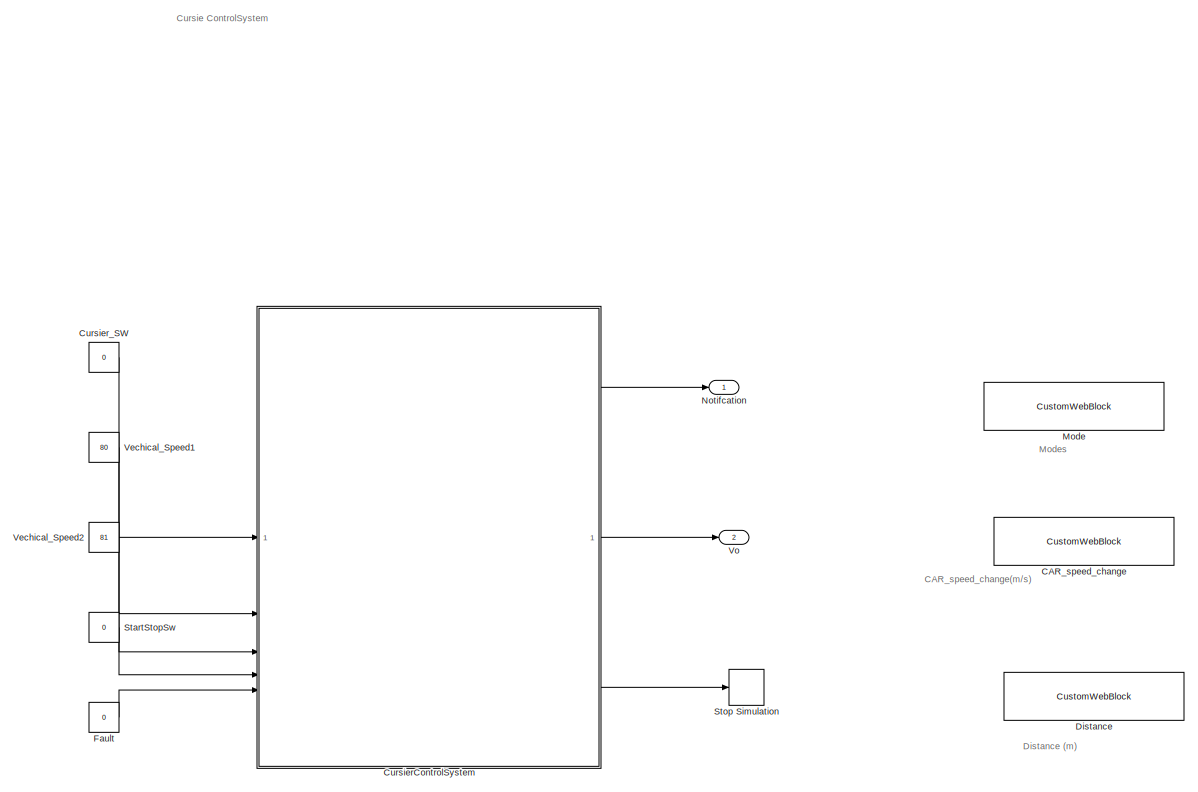
[diagram: root canvas - part 1/2, most of the canvas]
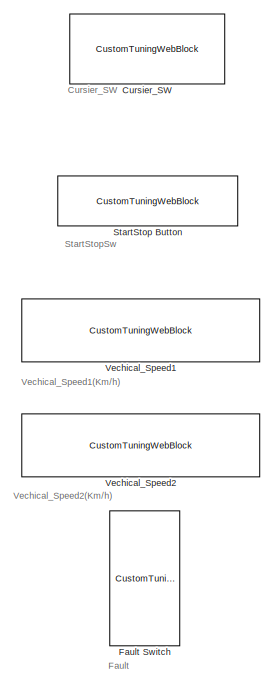
[diagram: root canvas - part 2/2, left side, full height]
MODEL slx_f8927d80b303
KIND model
CONFIG AbsTol = auto
CONFIG EnableMultiTasking = off
CONFIG FixedStep = 1
CONFIG MaxStep = auto
CONFIG MinStep = auto
CONFIG RelTol = 1e-3
CONFIG SampleTimeConstraint = Unconstrained
CONFIG SolverName = FixedStepDiscrete
CONFIG StartTime = 0.0
CONFIG StopTime = inf
BLOCK [CustomWebBlock] CAR_speed_change
  Configuration = {"components":[{"name":"DisplayComponent","settings":{"bold":false,"font":"DSEG7 Classic","fontColor":[255,255,200],"fontSize":"14","format":"short","formatString":"%d","italic":false,"position":[0,0,1,1],"underline":false}},{"name":"BackgroundImageComponent","settings":{"image":{"size":[300,80],"src":"data:image\/svg+xml;base64,PHN2ZyBpZD0iZnJhbWUiIHhtbG5zPSJodHRwOi8vd3d3LnczLm9yZy8yMDAwL3N2ZyIge...<+1637ch>  <repeated x3 — deduplicated; at blocks: CAR_speed_change, Distance, Mode>
  LabelPosition = Hide
  ShowInitialText = on
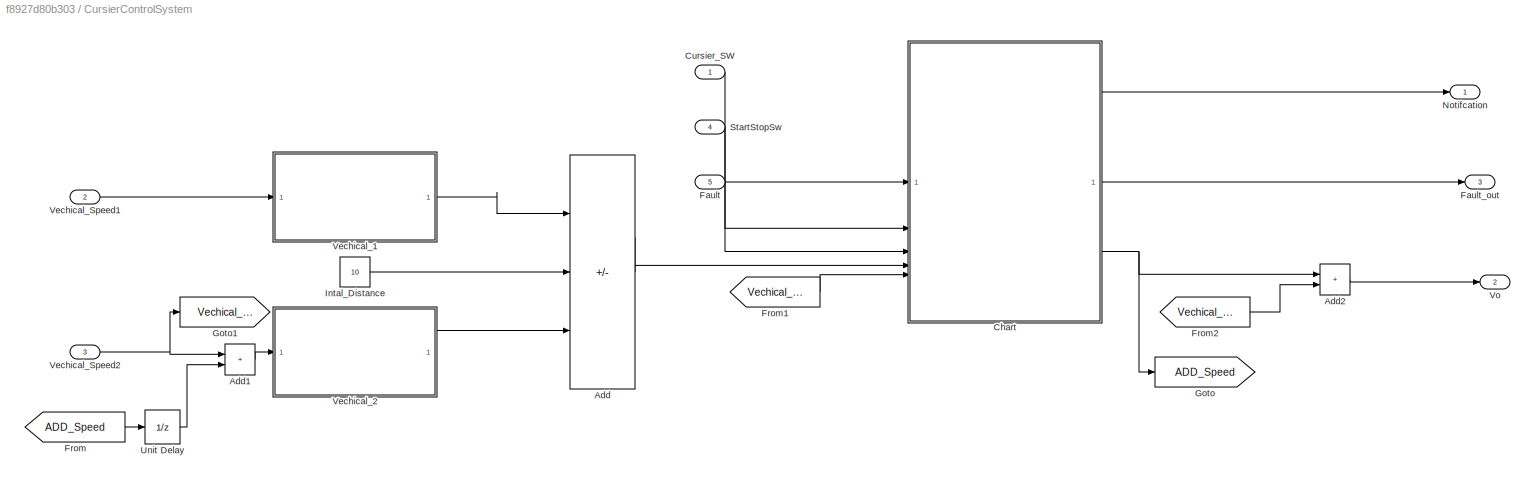
BLOCK [SubSystem] CursierControlSystem
BLOCK [Sum] CursierControlSystem/Add
  IconShape = rectangular
  Inputs = ++-
BLOCK [Sum] CursierControlSystem/Add1
  IconShape = rectangular
BLOCK [Sum] CursierControlSystem/Add2
  IconShape = rectangular
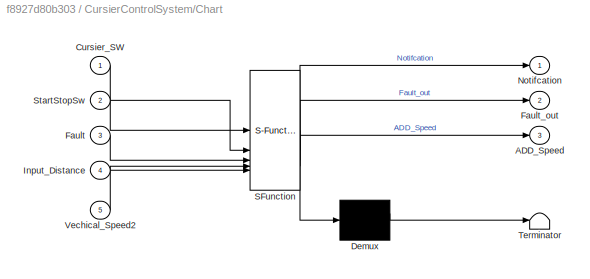
BLOCK [SubSystem] CursierControlSystem/Chart
  ErrorFcn = Stateflow.Translate.translate
  PermitHierarchicalResolution = ExplicitOnly
  SFBlockType = Chart
  TreatAsAtomicUnit = on
BLOCK [Demux] CursierControlSystem/Chart/ Demux 
  Outputs = 1
BLOCK [S-Function] CursierControlSystem/Chart/ SFunction 
  EnableBusSupport = on
  FunctionName = sf_sfun
  PortCounts = [5 4]
  SFcnIsStateOwnerBlock = off
  SFunctionDeploymentMode = off
  Tag = Stateflow S-Function 3
BLOCK [Terminator] CursierControlSystem/Chart/ Terminator 
BLOCK [Outport] CursierControlSystem/Chart/ADD_Speed
  Port = 3
BLOCK [Inport] CursierControlSystem/Chart/Cursier_SW
BLOCK [Inport] CursierControlSystem/Chart/Fault
  Port = 3
BLOCK [Outport] CursierControlSystem/Chart/Fault_out
  Port = 2
BLOCK [Inport] CursierControlSystem/Chart/Input_Distance
  Port = 4
BLOCK [Outport] CursierControlSystem/Chart/Notifcation
BLOCK [Inport] CursierControlSystem/Chart/StartStopSw
  Port = 2
BLOCK [Inport] CursierControlSystem/Chart/Vechical_Speed2
  Port = 5
BLOCK [Inport] CursierControlSystem/Cursier_SW
BLOCK [Inport] CursierControlSystem/Fault
  Port = 5
BLOCK [Outport] CursierControlSystem/Fault_out
  Port = 3
BLOCK [From] CursierControlSystem/From
  GotoTag = ADD_Speed
BLOCK [From] CursierControlSystem/From1
  GotoTag = Vechical_Speed2
BLOCK [From] CursierControlSystem/From2
  GotoTag = Vechical_Speed2
BLOCK [Goto] CursierControlSystem/Goto
  GotoTag = ADD_Speed
BLOCK [Goto] CursierControlSystem/Goto1
  GotoTag = Vechical_Speed2
BLOCK [Constant] CursierControlSystem/Intal_Distance
  Value = 10
BLOCK [Outport] CursierControlSystem/Notifcation
BLOCK [Inport] CursierControlSystem/StartStopSw
  Port = 4
BLOCK [UnitDelay] CursierControlSystem/Unit Delay
  HasFrameUpgradeWarning = on
  SampleTime = -1
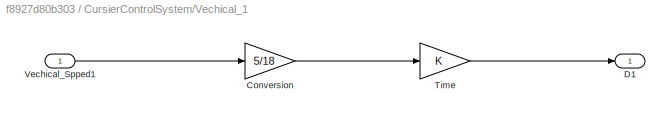
BLOCK [SubSystem] CursierControlSystem/Vechical_1
BLOCK [Gain] CursierControlSystem/Vechical_1/Conversion
  Gain = 5/18
BLOCK [Outport] CursierControlSystem/Vechical_1/D1
BLOCK [Gain] CursierControlSystem/Vechical_1/Time
BLOCK [Inport] CursierControlSystem/Vechical_1/Vechical_Spped1
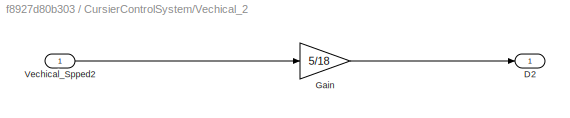
BLOCK [SubSystem] CursierControlSystem/Vechical_2
BLOCK [Outport] CursierControlSystem/Vechical_2/D2
BLOCK [Gain] CursierControlSystem/Vechical_2/Gain
  Gain = 5/18
BLOCK [Inport] CursierControlSystem/Vechical_2/Vechical_Spped2
BLOCK [Inport] CursierControlSystem/Vechical_Speed1
  Port = 2
BLOCK [Inport] CursierControlSystem/Vechical_Speed2
  Port = 3
BLOCK [Outport] CursierControlSystem/Vo
  Port = 2
BLOCK [Constant] Cursier_SW
  Value = 0
BLOCK [CustomTuningWebBlock] Cursier_SW 
  Configuration = {"components":[{"name":"CustomSwitchStateComponent","settings":{"position":[0,0,1,1],"states":[{"HitRegion":{"position":[0,0,0.5,1]},"Image":{"position":[0.13,0,1,0.75],"size":[1,0.75],"src":"data:image\/svg+xml;base64,PHN2ZyB4bWxucz0iaHR0cDovL3d3dy53My5vcmcvMjAwMC9zdmciIHhtbG5zOnhsaW5rPSJodHRwOi8vd3d3LnczLm9yZy8xOTk5L3hsaW5rIiB2aWV3Qm94PSIwIDAgNzUgMjQuOCI+PGRlZnM+PHN0eWxlPi5jbHMtMXtmaWxsOnVybCgjc...<+8986ch>
  LabelPosition = Hide
  ShowInitialText = on
BLOCK [CustomWebBlock] Distance
  LabelPosition = Hide
  ShowInitialText = on
BLOCK [Constant] Fault
  Value = 0
BLOCK [CustomTuningWebBlock] Fault Switch
  Configuration = {"components":[{"name":"CustomSwitchStateComponent","settings":{"position":[0,0,1,1],"showAllLabels":1,"states":[{"HitRegion":{"position":[0.5,0,1,0.5]},"Image":{"position":[0,0.24928571428571428,0.5014285714285714,1],"size":[0.5014285714285714,1],"src":"data:image\/svg+xml;base64,PHN2ZyB4bWxucz0iaHR0cDovL3d3dy53My5vcmcvMjAwMC9zdmciIHhtbG5zOnhsaW5rPSJodHRwOi8vd3d3LnczLm9yZy8xOTk5L3hsaW5rIiB2aWV3Qm...<+9166ch>
  LabelPosition = Hide
  ShowInitialText = on
BLOCK [CustomWebBlock] Mode
  LabelPosition = Hide
  ShowInitialText = on
BLOCK [Outport] Notifcation
  OutDataTypeStr = Enum: Car_Modes
BLOCK [CustomTuningWebBlock] StartStop Button
  Configuration = {"components":[{"name":"BackgroundImageComponent","settings":{"image":{"size":[0,0],"src":"default","srcOrientation":"horizontal"},"position":[0,0,1,1],"scaleMode":"0"}},{"name":"ButtonStateComponent","settings":{"buttonType":"momentary","clickFcn":"","image":{"size":[180,45],"srcOrientation":"Right"},"latched":false,"offValue":[],"onValue":1,"position":[0,0,1,1],"pressDelay":500,"pressFcn":"","re...<+16095ch>
  LabelPosition = Hide
  ShowInitialText = on
BLOCK [Constant] StartStopSw
  Value = 0
BLOCK [Stop] Stop Simulation
BLOCK [Constant] Vechical_Speed1
  Value = 80
BLOCK [CustomTuningWebBlock] Vechical_Speed1  
  Configuration = {"components":[{"name":"LinearScaleComponent","settings":{"bounds":{"max":100,"min":0,"tickInterval":"auto"},"internalTickHeightScaleFactor":0.5,"labelColor":[255,255,200],"labelFont":{"font":"Arial","fontSize":12},"labelOffset":0.05,"labelTransparency":1,"needleImage":{"size":[596,842],"src":"data:image\/svg+xml;base64,PD94bWwgdmVyc2lvbj0iMS4wIiBlbmNvZGluZz0idXRmLTgiPz4NCjwhLS0gR2VuZXJhdG9yOiBBZG...<+5490ch>
  LabelPosition = Hide
  ShowInitialText = on
BLOCK [Constant] Vechical_Speed2
  Value = 81
BLOCK [CustomTuningWebBlock] Vechical_Speed2 
  Configuration = {"components":[{"name":"LinearScaleComponent","settings":{"bounds":{"max":100,"min":0,"tickInterval":"auto"},"internalTickHeightScaleFactor":0.5,"labelColor":[255,255,200],"labelFont":{"font":"Arial","fontSize":12},"labelOffset":0.05,"labelTransparency":1,"needleImage":{"size":[596,842],"src":"data:image\/svg+xml;base64,PD94bWwgdmVyc2lvbj0iMS4wIiBlbmNvZGluZz0idXRmLTgiPz4NCjwhLS0gR2VuZXJhdG9yOiBBZG...<+5490ch>
  LabelPosition = Hide
  ShowInitialText = on
BLOCK [Outport] Vo
  Port = 2
ANNOTATION (root): CAR_speed_change(m/s)
ANNOTATION (root): Cursier_SW
ANNOTATION (root): Distance (m)
ANNOTATION (root): Fault
ANNOTATION (root): Modes
ANNOTATION (root): StartStopSw
ANNOTATION (root): Vechical_Speed1(Km/h)
ANNOTATION (root): Vechical_Speed2 (Km/h)
ANNOTATION (root): Cursie ControlSystem
LINE CursierControlSystem/Add1:1 -> CursierControlSystem/Vechical_2:1
LINE CursierControlSystem/Add2:1 -> CursierControlSystem/Vo:1
LINE CursierControlSystem/Add:1 -> CursierControlSystem/Chart:4
LINE CursierControlSystem/Chart:1 -> CursierControlSystem/Notifcation:1
LINE CursierControlSystem/Chart:2 -> CursierControlSystem/Fault_out:1
NET CursierControlSystem/Chart:3 -> CursierControlSystem/Add2:1, CursierControlSystem/Goto:1
LINE CursierControlSystem/Cursier_SW:1 -> CursierControlSystem/Chart:1
LINE CursierControlSystem/Fault:1 -> CursierControlSystem/Chart:3
LINE CursierControlSystem/From1:1 -> CursierControlSystem/Chart:5
LINE CursierControlSystem/From2:1 -> CursierControlSystem/Add2:2
LINE CursierControlSystem/From:1 -> CursierControlSystem/Unit Delay:1
LINE CursierControlSystem/Intal_Distance:1 -> CursierControlSystem/Add:2
LINE CursierControlSystem/StartStopSw:1 -> CursierControlSystem/Chart:2
LINE CursierControlSystem/Unit Delay:1 -> CursierControlSystem/Add1:2
LINE CursierControlSystem/Vechical_1/Conversion:1 -> CursierControlSystem/Vechical_1/Time:1
LINE CursierControlSystem/Vechical_1/Time:1 -> CursierControlSystem/Vechical_1/D1:1
LINE CursierControlSystem/Vechical_1/Vechical_Spped1:1 -> CursierControlSystem/Vechical_1/Conversion:1
LINE CursierControlSystem/Vechical_1:1 -> CursierControlSystem/Add:1
LINE CursierControlSystem/Vechical_2/Gain:1 -> CursierControlSystem/Vechical_2/D2:1
LINE CursierControlSystem/Vechical_2/Vechical_Spped2:1 -> CursierControlSystem/Vechical_2/Gain:1
LINE CursierControlSystem/Vechical_2:1 -> CursierControlSystem/Add:3
LINE CursierControlSystem/Vechical_Speed1:1 -> CursierControlSystem/Vechical_1:1
NET CursierControlSystem/Vechical_Speed2:1 -> CursierControlSystem/Add1:1, CursierControlSystem/Goto1:1
LINE CursierControlSystem:1 -> Notifcation:1
LINE CursierControlSystem:2 -> Vo:1
LINE CursierControlSystem:3 -> Stop Simulation:1
LINE Cursier_SW:1 -> CursierControlSystem:1
LINE Fault:1 -> CursierControlSystem:5
LINE StartStopSw:1 -> CursierControlSystem:4
LINE Vechical_Speed1:1 -> CursierControlSystem:2
LINE Vechical_Speed2:1 -> CursierControlSystem:3
note: NET lines group one-source signal fan-out (src -> all destinations, sorted); 1:1 wires keep LINE
CHART CursierControlSystem/Chart states=14 transitions=22
  STATE_LABEL 'Regular_System'
  STATE_LABEL 'Cruiser_On'
  STATE_LABEL 'Modes'
  STATE_LABEL 'Fault_Send\nen:\nNotifcation=Car_Modes.Fault;\nsend(Fault_event,FaultDetection);'
  STATE_LABEL 'Accelerate\nen:\nNotifcation=Car_Modes.Accelerate;\nADD_Speed=ADD_Speed+5;\ndu:\nADD_Speed=ADD_Speed+5;'
  STATE_LABEL 'Decelerate\nen:\nNotifcation=Car_Modes.Decelerate;\nADD_Speed=ADD_Speed-5;\ndu:\nADD_Speed=ADD_Speed-10;'
  STATE_LABEL 'Do_Nothing\nen:\nNotifcation=Car_Modes.Do_Nothing;'
  STATE_LABEL 'Stop\nen:\nNotifcation=Car_Modes.Stop;\nADD_Speed=-Vechical_Speed2;\ndu:\nADD_Speed=-Vechical_Speed2;\n\n'
  STATE_LABEL 'brake\nen:\nNotifcation=Car_Modes.brake;\nADD_Speed=-Vechical_Speed2+5;\ndu:\nADD_Speed=-Vechical_Speed2+5;'
  STATE_LABEL '[Fault==1]'
  STATE_LABEL '[Fault==0]'
  STATE_LABEL '[Input_Distance>15]'
  STATE_LABEL '[Input_Distance<10]'
  STATE_LABEL '[Input_Distance<5]'
  STATE_LABEL '[Input_Distance<1.5]'
  STATE_LABEL '[(5<Input_Distance)&&(Input_Distance<10)]'
  STATE_LABEL 'Cruiser_Off\nen:\nNotifcation=Car_Modes.Cruiser_Off;\n'
  STATE_LABEL '[(Cursier_SW==OFF)||(StartStopSw==ON)]'
  STATE_LABEL '[(Cursier_SW==ON)&&(StartStopSw==OFF)]'
  STATE_LABEL '{send(Fault_event,FaultDetection)}'
  STATE_LABEL '[Fault==1]'
  STATE_LABEL 'Cruiser_On'
  STATE_LABEL 'Modes'
  STATE_LABEL 'Fault_Send\nen:\nNotifcation=Car_Modes.Fault;\nsend(Fault_event,FaultDetection);'
  STATE_LABEL 'Accelerate\nen:\nNotifcation=Car_Modes.Accelerate;\nADD_Speed=ADD_Speed+5;\ndu:\nADD_Speed=ADD_Speed+5;'
  STATE_LABEL 'Decelerate\nen:\nNotifcation=Car_Modes.Decelerate;\nADD_Speed=ADD_Speed-5;\ndu:\nADD_Speed=ADD_Speed-10;'
  STATE_LABEL 'Do_Nothing\nen:\nNotifcation=Car_Modes.Do_Nothing;'
  STATE_LABEL 'Stop\nen:\nNotifcation=Car_Modes.Stop;\nADD_Speed=-Vechical_Speed2;\ndu:\nADD_Speed=-Vechical_Speed2;\n\n'
  STATE_LABEL 'brake\nen:\nNotifcation=Car_Modes.brake;\nADD_Speed=-Vechical_Speed2+5;\ndu:\nADD_Speed=-Vechical_Speed2+5;'
  STATE_LABEL '[Fault==1]'
  STATE_LABEL '[Fault==0]'
  STATE_LABEL '[Input_Distance>15]'
  STATE_LABEL '[Input_Distance<10]'
  STATE_LABEL '[Input_Distance<5]'
  STATE_LABEL '[Input_Distance<1.5]'
  STATE_LABEL '[(5<Input_Distance)&&(Input_Distance<10)]'
  STATE_LABEL 'Modes'
  STATE_LABEL 'Fault_Send\nen:\nNotifcation=Car_Modes.Fault;\nsend(Fault_event,FaultDetection);'
  STATE_LABEL 'Accelerate\nen:\nNotifcation=Car_Modes.Accelerate;\nADD_Speed=ADD_Speed+5;\ndu:\nADD_Speed=ADD_Speed+5;'
  STATE_LABEL 'Decelerate\nen:\nNotifcation=Car_Modes.Decelerate;\nADD_Speed=ADD_Speed-5;\ndu:\nADD_Speed=ADD_Speed-10;'
CHART  states=0 transitions=0
